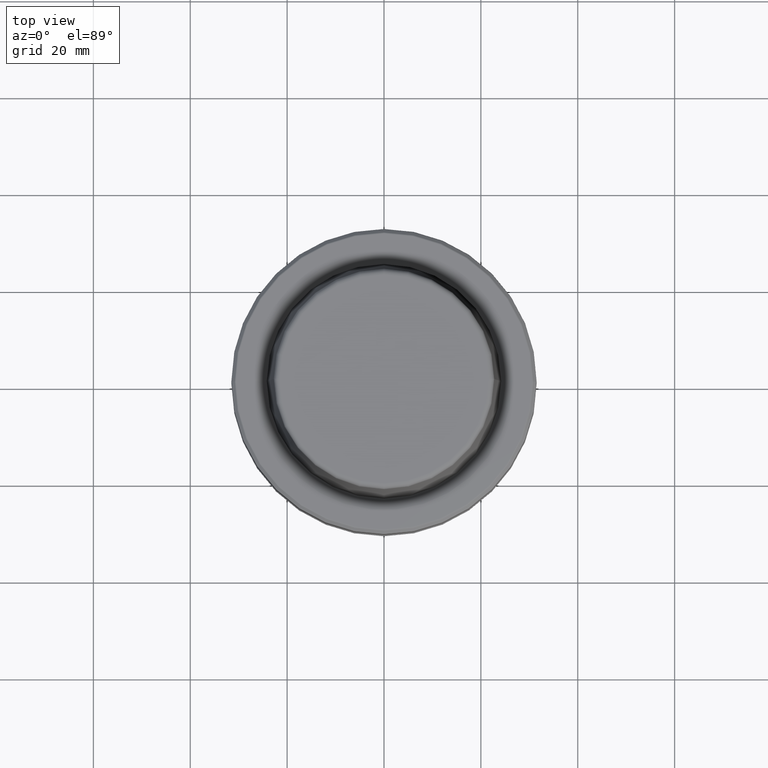
[diagram: clean part render]
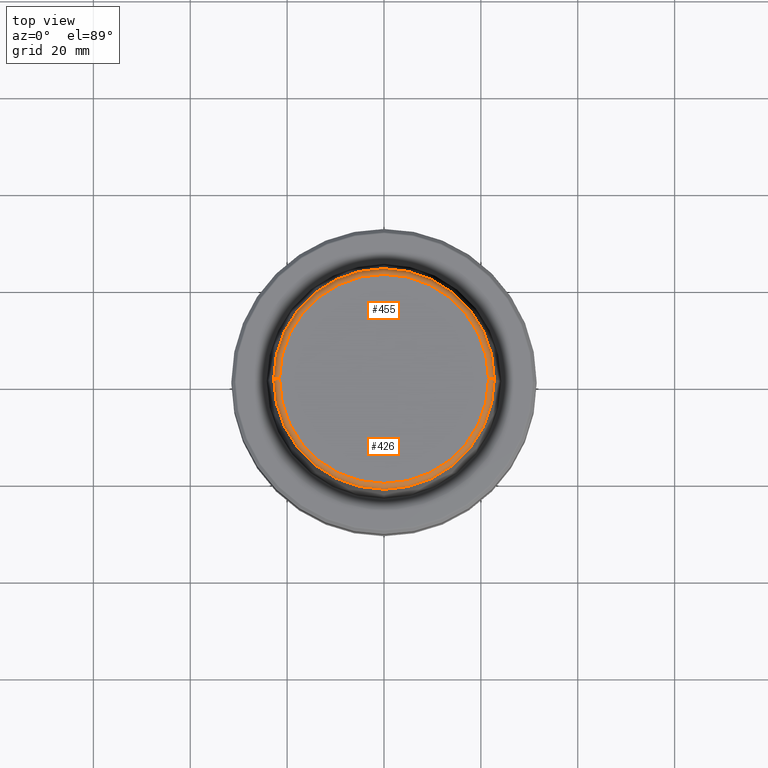
[diagram: same view with one multi-face feature highlighted, each face labeled with its STEP entity id]
A machine part, top view. The highlighted faces form ONE feature: a constant-radius fillet chain: 2 tangent blend faces with common blend radius 1.2 mm. The faces share edges in the B-rep.
Their STEP definitions:
[1] entity #426 (Torus):
#31 = EDGE_LOOP ( 'NONE', ( #1235, #170, #1019, #249 ) ) ;
#71 = FACE_OUTER_BOUND ( 'NONE', #31, .T. ) ;
#87 = DIRECTION ( 'NONE',  ( -0.0000000000000000000, -0.0000000000000000000, 1.000000000000000000 ) ) ;
#100 = DIRECTION ( 'NONE',  ( 0.0000000000000000000, -1.000000000000000000, 0.0000000000000000000 ) ) ;
#111 = CIRCLE ( 'NONE', #157, 21.58108272732117100 ) ;
#157 = AXIS2_PLACEMENT_3D ( 'NONE', #212, #799, #1090 ) ;
#170 = ORIENTED_EDGE ( 'NONE', *, *, #536, .T. ) ;
#176 = AXIS2_PLACEMENT_3D ( 'NONE', #825, #1197, #476 ) ;
#212 = CARTESIAN_POINT ( 'NONE',  ( 0.0000000000000000000, 0.0000000000000000000, 31.89999999999999900 ) ) ;
#231 = VERTEX_POINT ( 'NONE', #1239 ) ;
#240 = AXIS2_PLACEMENT_3D ( 'NONE', #420, #317, #1003 ) ;
#249 = ORIENTED_EDGE ( 'NONE', *, *, #824, .F. ) ;
#269 = CIRCLE ( 'NONE', #489, 1.200000000000003100 ) ;
#317 = DIRECTION ( 'NONE',  ( -0.0000000000000000000, -0.0000000000000000000, 1.000000000000000000 ) ) ;
#374 = CARTESIAN_POINT ( 'NONE',  ( 21.58108272732117100, 0.0000000000000000000, 30.69999999999999200 ) ) ;
#420 = CARTESIAN_POINT ( 'NONE',  ( 0.0000000000000000000, 0.0000000000000000000, 30.76004333261571900 ) ) ;
#426 = ADVANCED_FACE ( 'NONE', ( #71 ), #623, .T. ) ;
#433 = CIRCLE ( 'NONE', #240, 22.77957961851797100 ) ;
#476 = DIRECTION ( 'NONE',  ( -1.000000000000000000, 1.224646799147353200E-016, 0.0000000000000000000 ) ) ;
#489 = AXIS2_PLACEMENT_3D ( 'NONE', #374, #100, #786 ) ;
#536 = EDGE_CURVE ( 'NONE', #231, #600, #433, .T. ) ;
#600 = VERTEX_POINT ( 'NONE', #946 ) ;
#616 = CIRCLE ( 'NONE', #176, 1.200000000000003100 ) ;
#623 = TOROIDAL_SURFACE ( 'NONE', #801, 21.58108272732117100, 1.200000000000003100 ) ;
#663 = VERTEX_POINT ( 'NONE', #1157 ) ;
#695 = VERTEX_POINT ( 'NONE', #774 ) ;
#774 = CARTESIAN_POINT ( 'NONE',  ( 21.58108272732117100, 0.0000000000000000000, 31.89999999999999900 ) ) ;
#786 = DIRECTION ( 'NONE',  ( 0.0000000000000000000, 0.0000000000000000000, -1.000000000000000000 ) ) ;
#799 = DIRECTION ( 'NONE',  ( -0.0000000000000000000, -0.0000000000000000000, 1.000000000000000000 ) ) ;
#801 = AXIS2_PLACEMENT_3D ( 'NONE', #1033, #87, #1139 ) ;
#824 = EDGE_CURVE ( 'NONE', #663, #695, #111, .T. ) ;
#825 = CARTESIAN_POINT ( 'NONE',  ( -21.58108272732117100, 2.642920388414810300E-015, 30.69999999999999200 ) ) ;
#850 = EDGE_CURVE ( 'NONE', #600, #695, #269, .T. ) ;
#946 = CARTESIAN_POINT ( 'NONE',  ( 22.77957961851797100, 2.876386432489616700E-015, 30.76004333261571900 ) ) ;
#1003 = DIRECTION ( 'NONE',  ( 1.000000000000000000, 0.0000000000000000000, 0.0000000000000000000 ) ) ;
#1019 = ORIENTED_EDGE ( 'NONE', *, *, #850, .T. ) ;
#1033 = CARTESIAN_POINT ( 'NONE',  ( 0.0000000000000000000, 0.0000000000000000000, 30.69999999999999200 ) ) ;
#1090 = DIRECTION ( 'NONE',  ( 1.000000000000000000, 0.0000000000000000000, 0.0000000000000000000 ) ) ;
#1139 = DIRECTION ( 'NONE',  ( 1.000000000000000000, 0.0000000000000000000, 0.0000000000000000000 ) ) ;
#1153 = EDGE_CURVE ( 'NONE', #231, #663, #616, .T. ) ;
#1157 = CARTESIAN_POINT ( 'NONE',  ( -21.58108272732117100, 2.716307157494421400E-015, 31.89999999999999900 ) ) ;
#1197 = DIRECTION ( 'NONE',  ( 1.224646799147353200E-016, 1.000000000000000000, 0.0000000000000000000 ) ) ;
#1235 = ORIENTED_EDGE ( 'NONE', *, *, #1153, .F. ) ;
#1239 = CARTESIAN_POINT ( 'NONE',  ( -22.77957961851797100, 0.0000000000000000000, 30.76004333261571900 ) ) ;
[2] entity #455 (Torus):
#25 = DIRECTION ( 'NONE',  ( 1.000000000000000000, 0.0000000000000000000, 0.0000000000000000000 ) ) ;
#40 = TOROIDAL_SURFACE ( 'NONE', #1056, 21.58108272732117100, 1.200000000000003100 ) ;
#100 = DIRECTION ( 'NONE',  ( 0.0000000000000000000, -1.000000000000000000, 0.0000000000000000000 ) ) ;
#118 = AXIS2_PLACEMENT_3D ( 'NONE', #1186, #411, #25 ) ;
#165 = CARTESIAN_POINT ( 'NONE',  ( 0.0000000000000000000, 0.0000000000000000000, 30.69999999999999200 ) ) ;
#176 = AXIS2_PLACEMENT_3D ( 'NONE', #825, #1197, #476 ) ;
#231 = VERTEX_POINT ( 'NONE', #1239 ) ;
#269 = CIRCLE ( 'NONE', #489, 1.200000000000003100 ) ;
#271 = DIRECTION ( 'NONE',  ( -0.0000000000000000000, -0.0000000000000000000, 1.000000000000000000 ) ) ;
#341 = CARTESIAN_POINT ( 'NONE',  ( 0.0000000000000000000, 0.0000000000000000000, 30.76004333261571900 ) ) ;
#374 = CARTESIAN_POINT ( 'NONE',  ( 21.58108272732117100, 0.0000000000000000000, 30.69999999999999200 ) ) ;
#411 = DIRECTION ( 'NONE',  ( -0.0000000000000000000, -0.0000000000000000000, 1.000000000000000000 ) ) ;
#449 = EDGE_CURVE ( 'NONE', #600, #231, #558, .T. ) ;
#455 = ADVANCED_FACE ( 'NONE', ( #1042 ), #40, .T. ) ;
#474 = DIRECTION ( 'NONE',  ( 1.000000000000000000, 0.0000000000000000000, 0.0000000000000000000 ) ) ;
#476 = DIRECTION ( 'NONE',  ( -1.000000000000000000, 1.224646799147353200E-016, 0.0000000000000000000 ) ) ;
#489 = AXIS2_PLACEMENT_3D ( 'NONE', #374, #100, #786 ) ;
#513 = EDGE_CURVE ( 'NONE', #695, #663, #696, .T. ) ;
#558 = CIRCLE ( 'NONE', #871, 22.77957961851797100 ) ;
#600 = VERTEX_POINT ( 'NONE', #946 ) ;
#616 = CIRCLE ( 'NONE', #176, 1.200000000000003100 ) ;
#649 = ORIENTED_EDGE ( 'NONE', *, *, #513, .F. ) ;
#663 = VERTEX_POINT ( 'NONE', #1157 ) ;
#695 = VERTEX_POINT ( 'NONE', #774 ) ;
#696 = CIRCLE ( 'NONE', #118, 21.58108272732117100 ) ;
#753 = DIRECTION ( 'NONE',  ( 1.000000000000000000, 0.0000000000000000000, 0.0000000000000000000 ) ) ;
#774 = CARTESIAN_POINT ( 'NONE',  ( 21.58108272732117100, 0.0000000000000000000, 31.89999999999999900 ) ) ;
#786 = DIRECTION ( 'NONE',  ( 0.0000000000000000000, 0.0000000000000000000, -1.000000000000000000 ) ) ;
#825 = CARTESIAN_POINT ( 'NONE',  ( -21.58108272732117100, 2.642920388414810300E-015, 30.69999999999999200 ) ) ;
#850 = EDGE_CURVE ( 'NONE', #600, #695, #269, .T. ) ;
#871 = AXIS2_PLACEMENT_3D ( 'NONE', #341, #1046, #753 ) ;
#939 = EDGE_LOOP ( 'NONE', ( #1031, #996, #649, #1160 ) ) ;
#946 = CARTESIAN_POINT ( 'NONE',  ( 22.77957961851797100, 2.876386432489616700E-015, 30.76004333261571900 ) ) ;
#996 = ORIENTED_EDGE ( 'NONE', *, *, #1153, .T. ) ;
#1031 = ORIENTED_EDGE ( 'NONE', *, *, #449, .T. ) ;
#1042 = FACE_OUTER_BOUND ( 'NONE', #939, .T. ) ;
#1046 = DIRECTION ( 'NONE',  ( -0.0000000000000000000, -0.0000000000000000000, 1.000000000000000000 ) ) ;
#1056 = AXIS2_PLACEMENT_3D ( 'NONE', #165, #271, #474 ) ;
#1153 = EDGE_CURVE ( 'NONE', #231, #663, #616, .T. ) ;
#1157 = CARTESIAN_POINT ( 'NONE',  ( -21.58108272732117100, 2.716307157494421400E-015, 31.89999999999999900 ) ) ;
#1160 = ORIENTED_EDGE ( 'NONE', *, *, #850, .F. ) ;
#1186 = CARTESIAN_POINT ( 'NONE',  ( 0.0000000000000000000, 0.0000000000000000000, 31.89999999999999900 ) ) ;
#1197 = DIRECTION ( 'NONE',  ( 1.224646799147353200E-016, 1.000000000000000000, 0.0000000000000000000 ) ) ;
#1239 = CARTESIAN_POINT ( 'NONE',  ( -22.77957961851797100, 0.0000000000000000000, 30.76004333261571900 ) ) ;